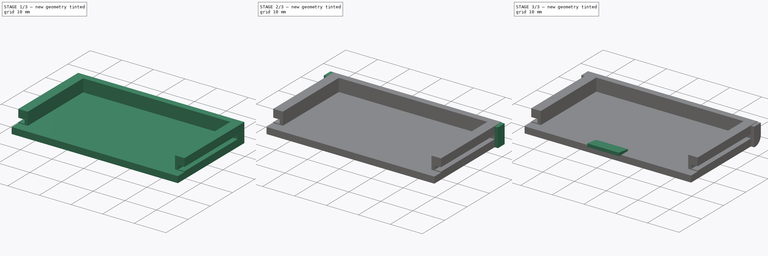
[diagram: build sequence overview — one tinted view per stage of 3, left to right]
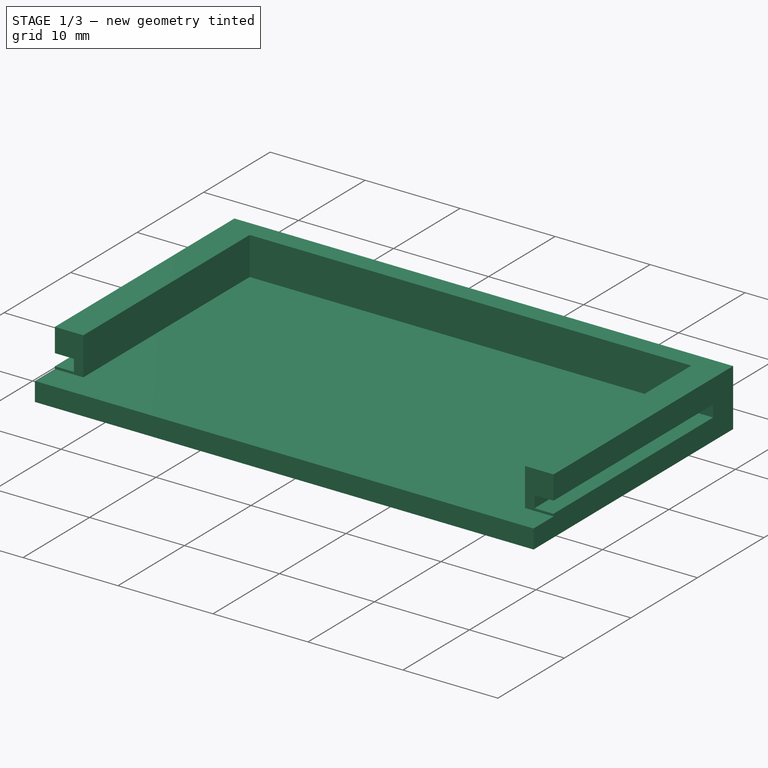
[diagram: stage 1 of 3 — iso view after this stage's code; geometry added in this stage tinted green]
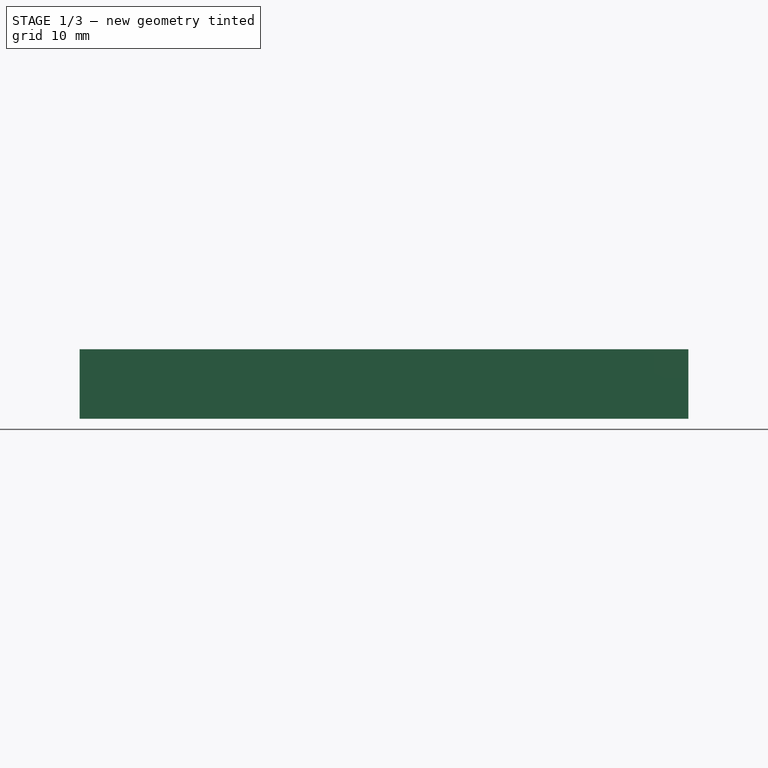
[diagram: stage 1 of 3 — front view after this stage's code; geometry added in this stage tinted green]
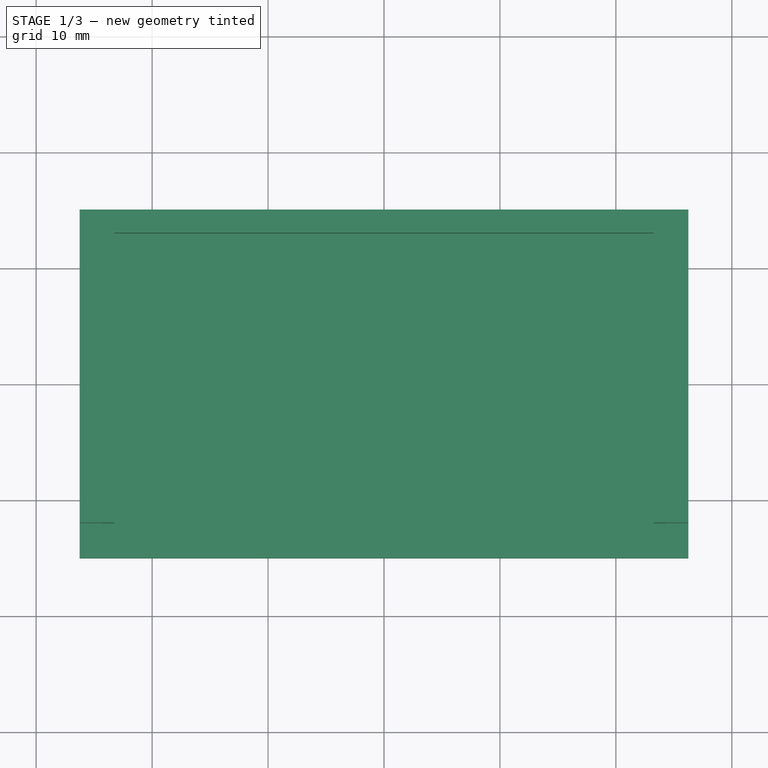
[diagram: stage 1 of 3 — top view after this stage's code; geometry added in this stage tinted green]
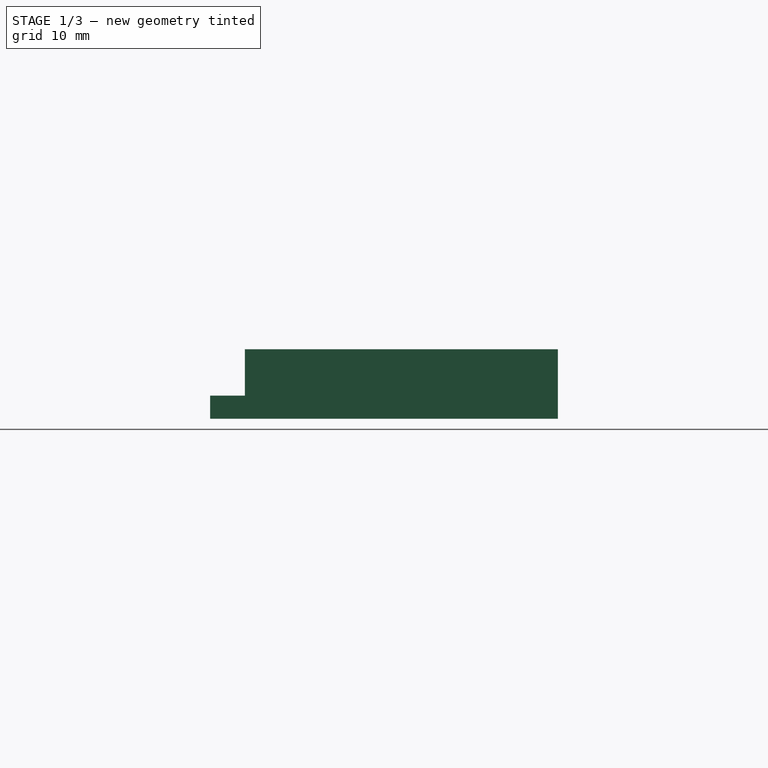
[diagram: stage 1 of 3 — right view after this stage's code; geometry added in this stage tinted green]
FCSTD DOCUMENT  (FreeCAD 0.19R24276 (Git))
Label: metronome
License: All rights reserved
LicenseURL: http://en.wikipedia.org/wiki/All_rights_reserved
objects: Sketcher::SketchObject×6, PartDesign::Pad×4, PartDesign::Pocket×2, PartDesign::Chamfer×1, PartDesign::Fillet×1, PartDesign::Body×1
note: 23 computed .brp shape members not serialized (recipe doc carries the construction recipe); baked Part::Feature solids carry a one-line shape summary decoded from their .brp

FEATURE [Sketcher::SketchObject] Sketch
  FullyConstrained = true
  MapMode = 5
  Support = -> [XY_Plane]
  sketch-geometry (4):
    g0: LineSegment StartX=-26.25 StartY=15 StartZ=0 EndX=26.25 EndY=15 EndZ=0
    g1: LineSegment StartX=26.25 StartY=15 StartZ=0 EndX=26.25 EndY=-15 EndZ=0
    g2: LineSegment StartX=26.25 StartY=-15 StartZ=0 EndX=-26.25 EndY=-15 EndZ=0
    g3: LineSegment StartX=-26.25 StartY=-15 StartZ=0 EndX=-26.25 EndY=15 EndZ=0
  constraints (11):
    c: Coincident(g0,g1)
    c: Coincident(g1,g2)
    c: Coincident(g2,g3)
    c: Coincident(g3,g0)
    c: Horizontal(g0)
    c: Horizontal(g2)
    c: Vertical(g1)
    c: Vertical(g3)
    c: DistanceY(g1,g1) = 30
    c: DistanceX(g0,g0) = 52.5
    c: Symmetric(g0,g1,g-1)
FEATURE [PartDesign::Pad] Pad
  Direction = (1,1,1)
  Length = 6
  Length2 = 100
  Profile = -> Sketch
  Type = 0
FEATURE [Sketcher::SketchObject] Sketch001
  ExternalGeometry = -> [Pad]
  FullyConstrained = true
  MapMode = 5
  Placement = pos=(0,0,6) rot=(0,0,1;0rad)
  Support = -> [Pad]
  sketch-geometry (8):
    g0: LineSegment StartX=-26.25 StartY=-12 StartZ=0 EndX=-23.25 EndY=-12 EndZ=0
    g1: LineSegment StartX=26.25 StartY=-12 StartZ=0 EndX=26.25 EndY=-15 EndZ=0
    g2: LineSegment StartX=26.25 StartY=-15 StartZ=0 EndX=-26.25 EndY=-15 EndZ=0
    g3: LineSegment StartX=-26.25 StartY=-15 StartZ=0 EndX=-26.25 EndY=-12 EndZ=0
    g4: LineSegment StartX=23.25 StartY=-12 StartZ=0 EndX=23.25 EndY=13 EndZ=0
    g5: LineSegment StartX=23.25 StartY=13 StartZ=0 EndX=-23.25 EndY=13 EndZ=0
    g6: LineSegment StartX=-23.25 StartY=13 StartZ=0 EndX=-23.25 EndY=-12 EndZ=0
    g7: LineSegment StartX=23.25 StartY=-12 StartZ=0 EndX=26.25 EndY=-12 EndZ=0
  constraints (22):
    c: Coincident(g7,g1)
    c: Coincident(g1,g2)
    c: Coincident(g2,g3)
    c: Coincident(g3,g0)
    c: Horizontal(g0)
    c: Horizontal(g2)
    c: Vertical(g1)
    c: Vertical(g3)
    c: PointOnObject(g0,g-3)
    c: Coincident(g1,g-6)
    c: DistanceY(g3,g3) = 3
    c: Coincident(g4,g5)
    c: Coincident(g5,g6)
    c: Horizontal(g5)
    c: Vertical(g4)
    c: Vertical(g6)
    c: Tangent(g0,g7)
    c: DistanceX(g-5,g5) = 3
    c: DistanceX(g4,g-5) = 3
    c: Coincident(g7,g4)
    c: Coincident(g0,g6)
    c: DistanceY(g5,g-5) = 2
FEATURE [PartDesign::Pocket] Pocket
  BaseFeature = -> Pad
  Length = 4
  Length2 = 100
  Profile = -> Sketch001
  Type = 0
FEATURE [Sketcher::SketchObject] Sketch002
  ExternalGeometry = -> [Pocket]
  FullyConstrained = true
  MapMode = 5
  Placement = pos=(-6.4e-14,-12,0) rot=(1,0,0;1.5708rad)
  Support = -> [Pocket]
  sketch-geometry (8):
    g0: LineSegment StartX=-26.25 StartY=3.5 StartZ=0 EndX=-24.25 EndY=3.5 EndZ=0
    g1: LineSegment StartX=-24.25 StartY=3.5 StartZ=0 EndX=-24.25 EndY=2.25 EndZ=0
    g2: LineSegment StartX=-24.25 StartY=2.25 StartZ=0 EndX=-26.25 EndY=2.25 EndZ=0
    g3: LineSegment StartX=-26.25 StartY=2.25 StartZ=0 EndX=-26.25 EndY=3.5 EndZ=0
    g4: LineSegment StartX=26.25 StartY=3.5 StartZ=0 EndX=24.25 EndY=3.5 EndZ=0
    g5: LineSegment StartX=24.25 StartY=3.5 StartZ=0 EndX=24.25 EndY=2.25 EndZ=0
    g6: LineSegment StartX=24.25 StartY=2.25 StartZ=0 EndX=26.25 EndY=2.25 EndZ=0
    g7: LineSegment StartX=26.25 StartY=2.25 StartZ=0 EndX=26.25 EndY=3.5 EndZ=0
  constraints (24):
    c: Coincident(g0,g1)
    c: Coincident(g1,g2)
    c: Coincident(g2,g3)
    c: Coincident(g3,g0)
    c: Horizontal(g0)
    c: Horizontal(g2)
    c: Vertical(g1)
    c: Vertical(g3)
    c: PointOnObject(g0,g-4)
    c: DistanceY(g1,g1) = 1.25
    c: DistanceY(g0,g-4) = 2.5
    c: DistanceX(g2,g2) = 2
    c: Coincident(g4,g5)
    c: Coincident(g5,g6)
    c: Coincident(g6,g7)
    c: Coincident(g7,g4)
    c: Horizontal(g4)
    c: Horizontal(g6)
    c: Vertical(g5)
    c: Vertical(g7)
    c: PointOnObject(g4,g-7)
    c: DistanceX(g6,g6) = 2
    c: DistanceY(g7,g7) = 1.25
    c: DistanceY(g4,g-7) = 2.5
FEATURE [PartDesign::Pocket] Pocket001
  BaseFeature = -> Pocket
  Length = 24
  Length2 = 100
  Profile = -> Sketch002
  Type = 0
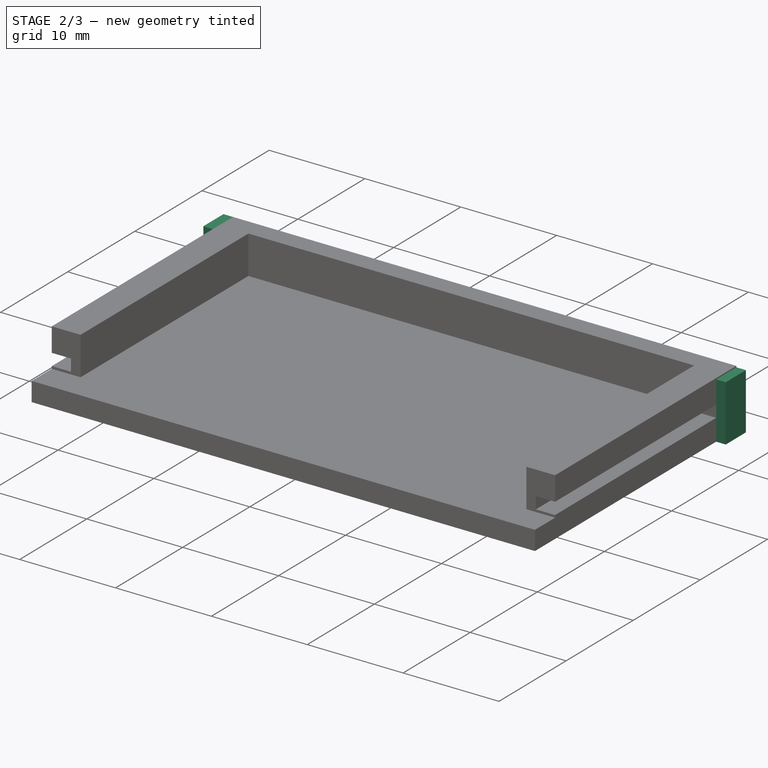
[diagram: stage 2 of 3 — iso view after this stage's code; geometry added in this stage tinted green]
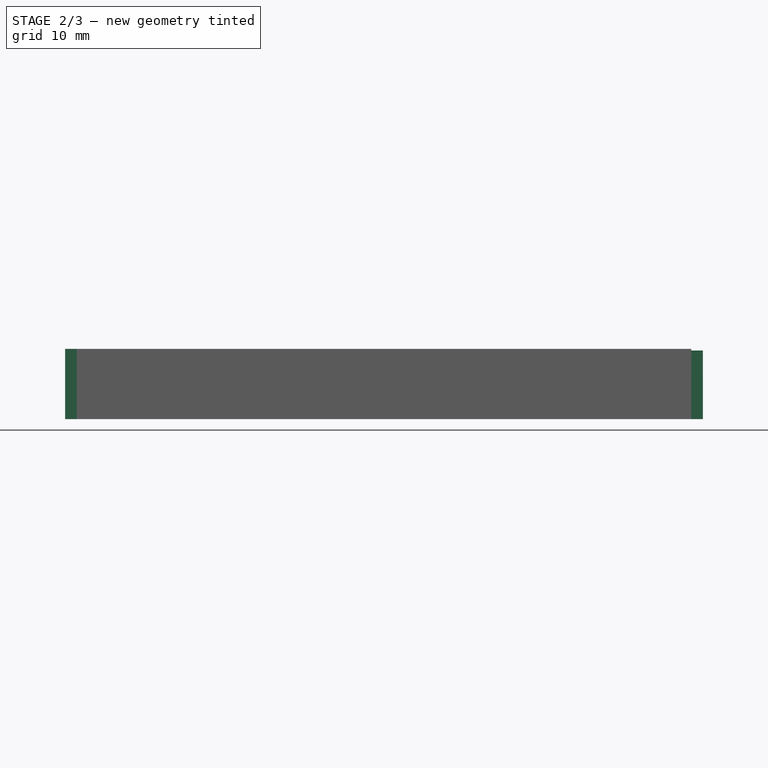
[diagram: stage 2 of 3 — front view after this stage's code; geometry added in this stage tinted green]
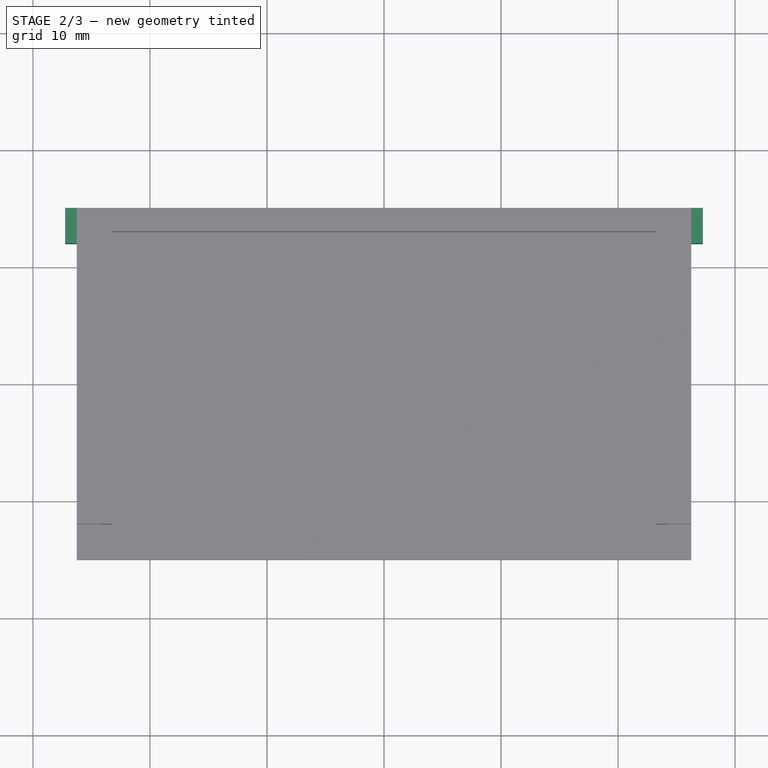
[diagram: stage 2 of 3 — top view after this stage's code; geometry added in this stage tinted green]
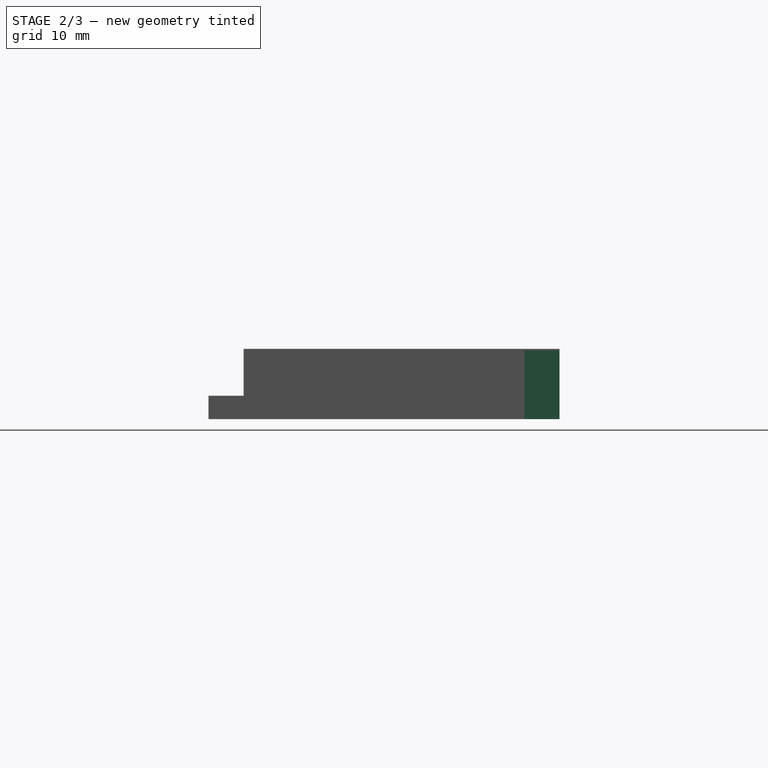
[diagram: stage 2 of 3 — right view after this stage's code; geometry added in this stage tinted green]
FEATURE [Sketcher::SketchObject] Sketch003
  ExternalGeometry = -> [Pocket001]
  FullyConstrained = true
  MapMode = 5
  Placement = pos=(-26.25,0,0) rot=(0.57735,-0.57735,-0.57735;2.0944rad)
  Support = -> [Pocket001]
  sketch-geometry (4):
    g0: LineSegment StartX=-15 StartY=6 StartZ=0 EndX=-12 EndY=6 EndZ=0
    g1: LineSegment StartX=-12 StartY=6 StartZ=0 EndX=-12 EndY=0 EndZ=0
    g2: LineSegment StartX=-12 StartY=0 StartZ=0 EndX=-15 EndY=0 EndZ=0
    g3: LineSegment StartX=-15 StartY=0 StartZ=0 EndX=-15 EndY=6 EndZ=0
  constraints (11):
    c: Coincident(g0,g1)
    c: Coincident(g1,g2)
    c: Coincident(g2,g3)
    c: Coincident(g3,g0)
    c: Horizontal(g0)
    c: Horizontal(g2)
    c: Vertical(g1)
    c: Vertical(g3)
    c: Coincident(g0,g-4)
    c: PointOnObject(g1,g-5)
    c: DistanceX(g2,g2) = 3
FEATURE [PartDesign::Pad] Pad001
  BaseFeature = -> Pocket001
  Direction = (1,1,1)
  Length = 1
  Length2 = 100
  Profile = -> Sketch003
  Type = 0
FEATURE [Sketcher::SketchObject] Sketch004
  ExternalGeometry = -> [Pad001]
  FullyConstrained = false
  MapMode = 5
  Placement = pos=(26.25,0,0) rot=(0.57735,0.57735,0.57735;2.0944rad)
  Support = -> [Pad001]
  sketch-geometry (4):
    g0: LineSegment StartX=15 StartY=5.86704 StartZ=0 EndX=12 EndY=5.86704 EndZ=0
    g1: LineSegment StartX=12 StartY=5.86704 StartZ=0 EndX=12 EndY=0 EndZ=0
    g2: LineSegment StartX=12 StartY=0 StartZ=0 EndX=15 EndY=0 EndZ=0
    g3: LineSegment StartX=15 StartY=0 StartZ=0 EndX=15 EndY=5.86704 EndZ=0
  constraints (11):
    c: Coincident(g0,g1)
    c: Coincident(g1,g2)
    c: Coincident(g2,g3)
    c: Coincident(g3,g0)
    c: Horizontal(g0)
    c: Horizontal(g2)
    c: Vertical(g1)
    c: Vertical(g3)
    c: PointOnObject(g0,g-4)
    c: PointOnObject(g1,g-5)
    c: DistanceX(g2,g2) = 3
FEATURE [PartDesign::Pad] Pad002
  BaseFeature = -> Pad001
  Direction = (1,1,1)
  Length = 1
  Length2 = 100
  Profile = -> Sketch004
  Type = 0
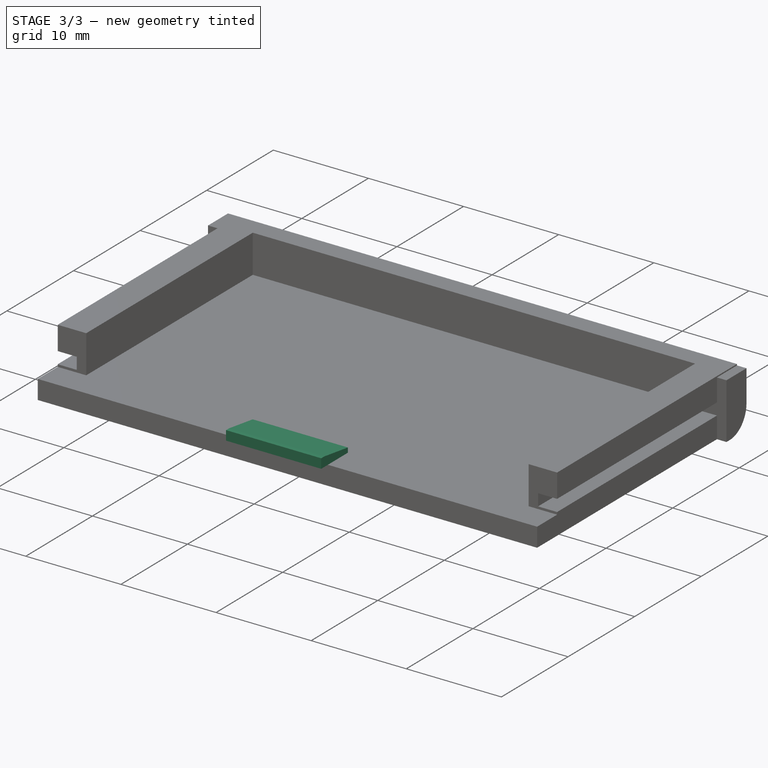
[diagram: stage 3 of 3 — iso view after this stage's code; geometry added in this stage tinted green]
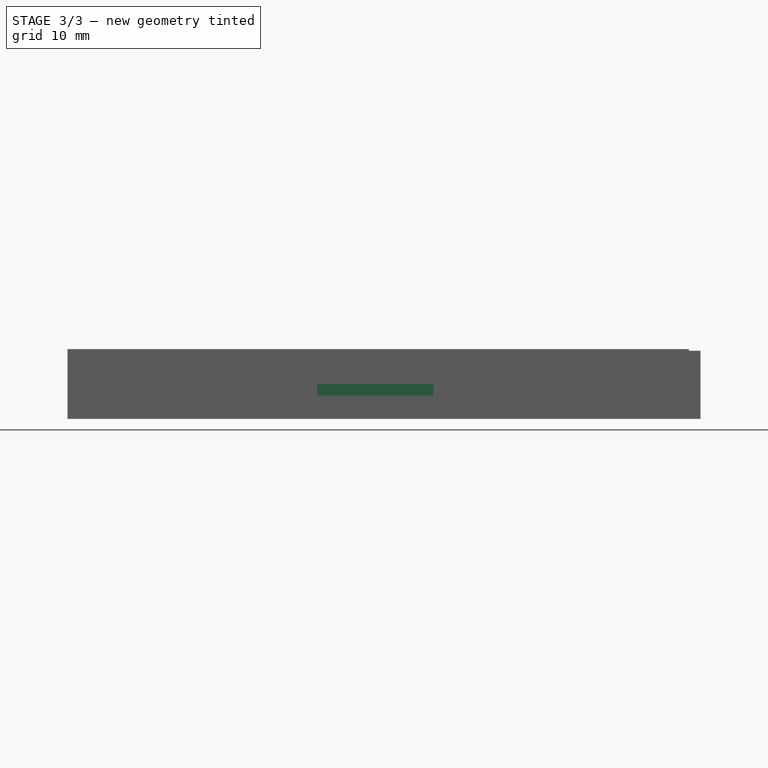
[diagram: stage 3 of 3 — front view after this stage's code; geometry added in this stage tinted green]
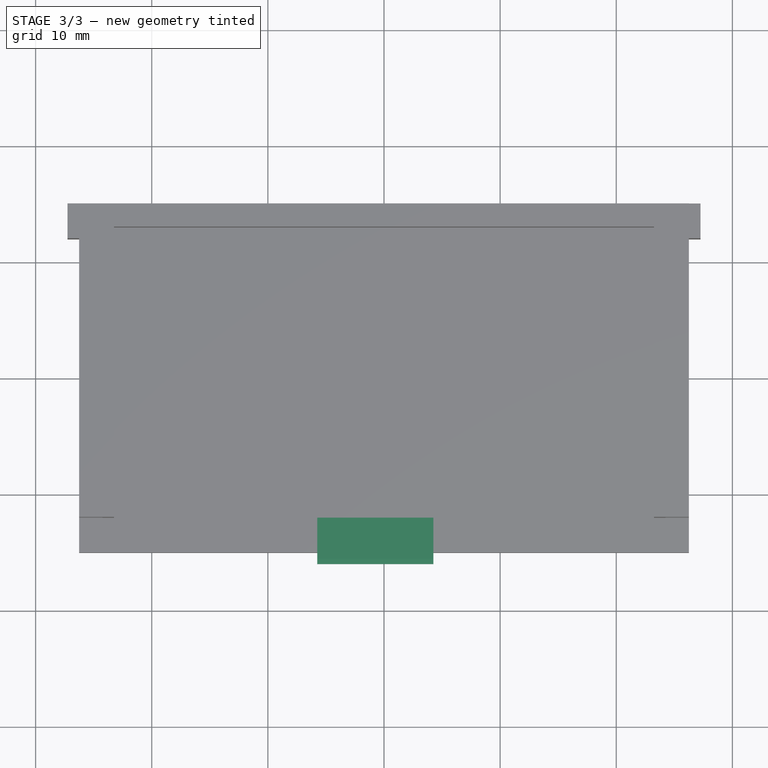
[diagram: stage 3 of 3 — top view after this stage's code; geometry added in this stage tinted green]
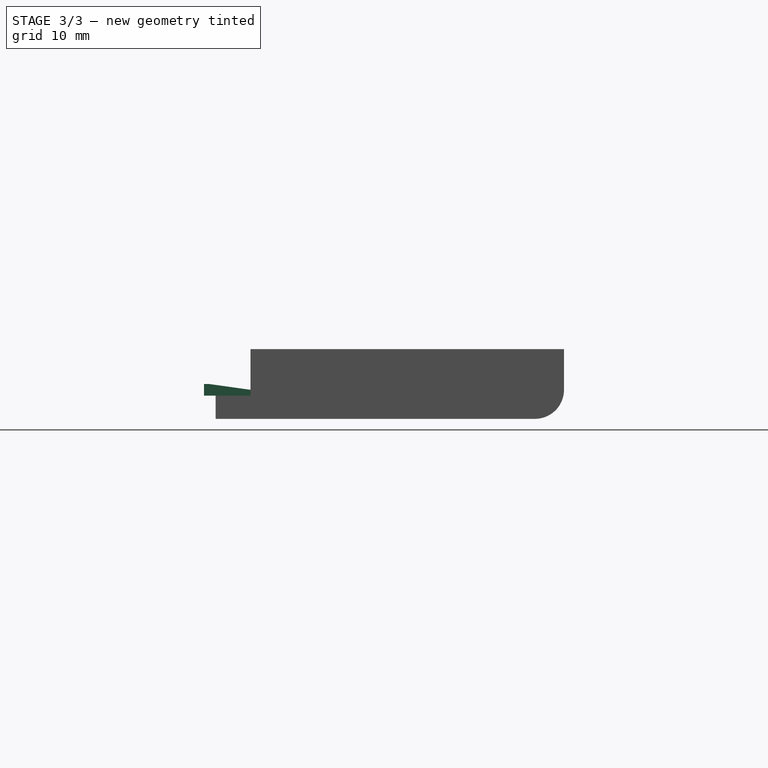
[diagram: stage 3 of 3 — right view after this stage's code; geometry added in this stage tinted green]
FEATURE [Sketcher::SketchObject] Sketch005
  ExternalGeometry = -> [Pad002]
  FullyConstrained = false
  MapMode = 5
  Placement = pos=(0,0,2) rot=(0,0,1;0rad)
  Support = -> [Pad002]
  sketch-geometry (4):
    g0: LineSegment StartX=-5.75 StartY=-12 StartZ=0 EndX=4.25 EndY=-12 EndZ=0
    g1: LineSegment StartX=4.25 StartY=-12 StartZ=0 EndX=4.25 EndY=-16 EndZ=0
    g2: LineSegment StartX=4.25 StartY=-16 StartZ=0 EndX=-5.75 EndY=-16 EndZ=0
    g3: LineSegment StartX=-5.75 StartY=-16 StartZ=0 EndX=-5.75 EndY=-12 EndZ=0
  constraints (11):
    c: Coincident(g0,g1)
    c: Coincident(g1,g2)
    c: Coincident(g2,g3)
    c: Coincident(g3,g0)
    c: Horizontal(g0)
    c: Horizontal(g2)
    c: Vertical(g1)
    c: Vertical(g3)
    c: DistanceX(g2,g2) = 10
    c: DistanceY(g1,g1) = 4
    c: DistanceY(g2,g-4) = 1
FEATURE [PartDesign::Pad] Pad003
  BaseFeature = -> Pad002
  Direction = (1,1,1)
  Length = 1
  Length2 = 100
  Profile = -> Sketch005
  Type = 0
FEATURE [PartDesign::Chamfer] Chamfer
  Angle = 82
  Base = -> Pad003 [Edge92]
  BaseFeature = -> Pad003
  ChamferType = 2
  FlipDirection = false
  Size = 0.5
  Size2 = 3
  SupportTransform = false
FEATURE [PartDesign::Fillet] Fillet
  Base = -> Chamfer [Edge91,Edge67,Edge93]
  BaseFeature = -> Chamfer
  Radius = 2.5
  SupportTransform = false
FEATURE [PartDesign::Body] Body
  Group = -> [Sketch,Pad,Sketch001,Pocket,Sketch002,Pocket001,Sketch003,Pad001,Sketch004,Pad002,Sketch005,Pad003,Chamfer,Fillet]
  Origin = -> Origin
  Tip = -> Fillet
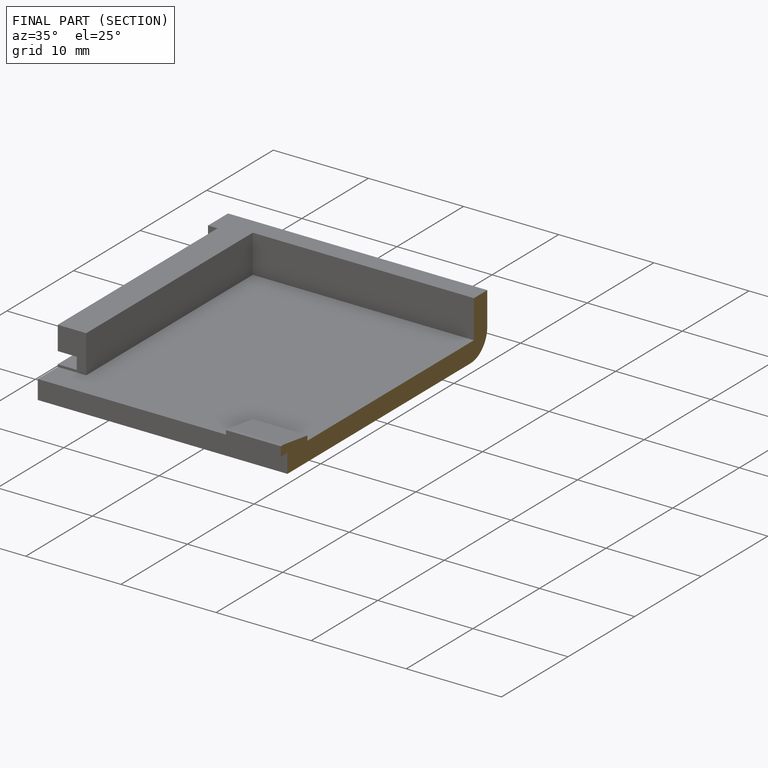
[diagram: finished part — half-section view (interior)]
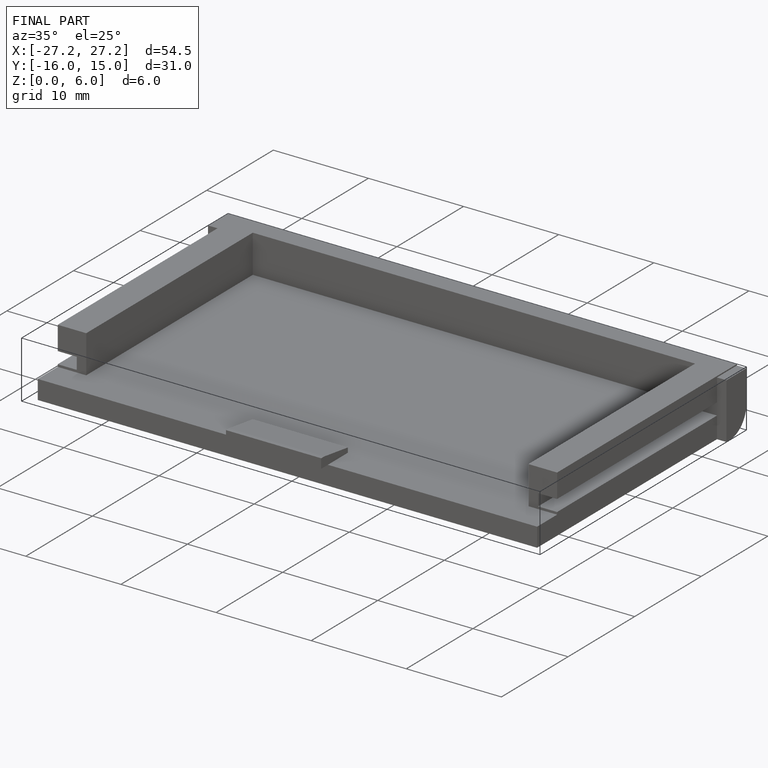
[diagram: finished part — iso view with bounding-box wireframe]
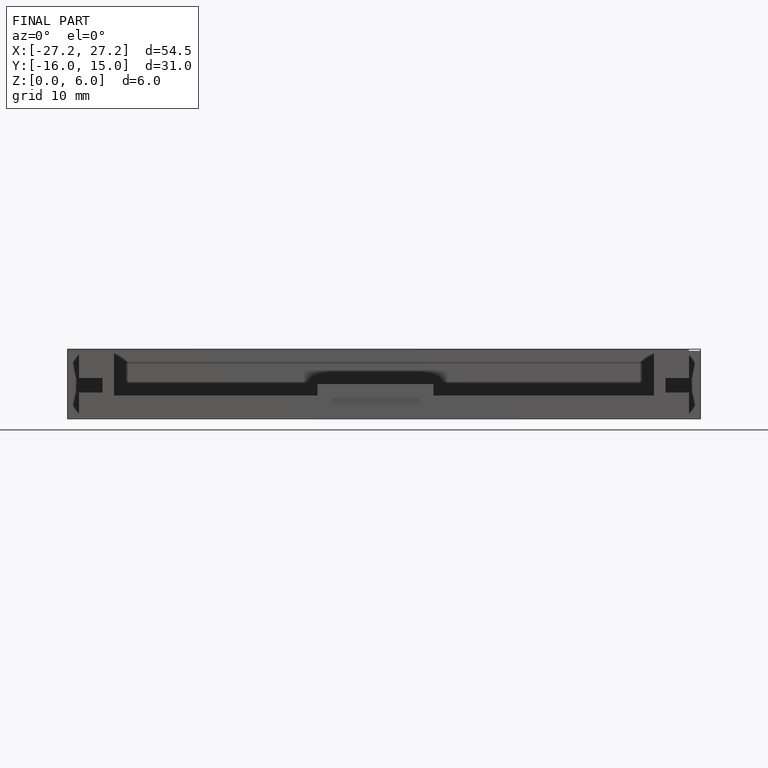
[diagram: finished part — front view with bounding-box wireframe]
